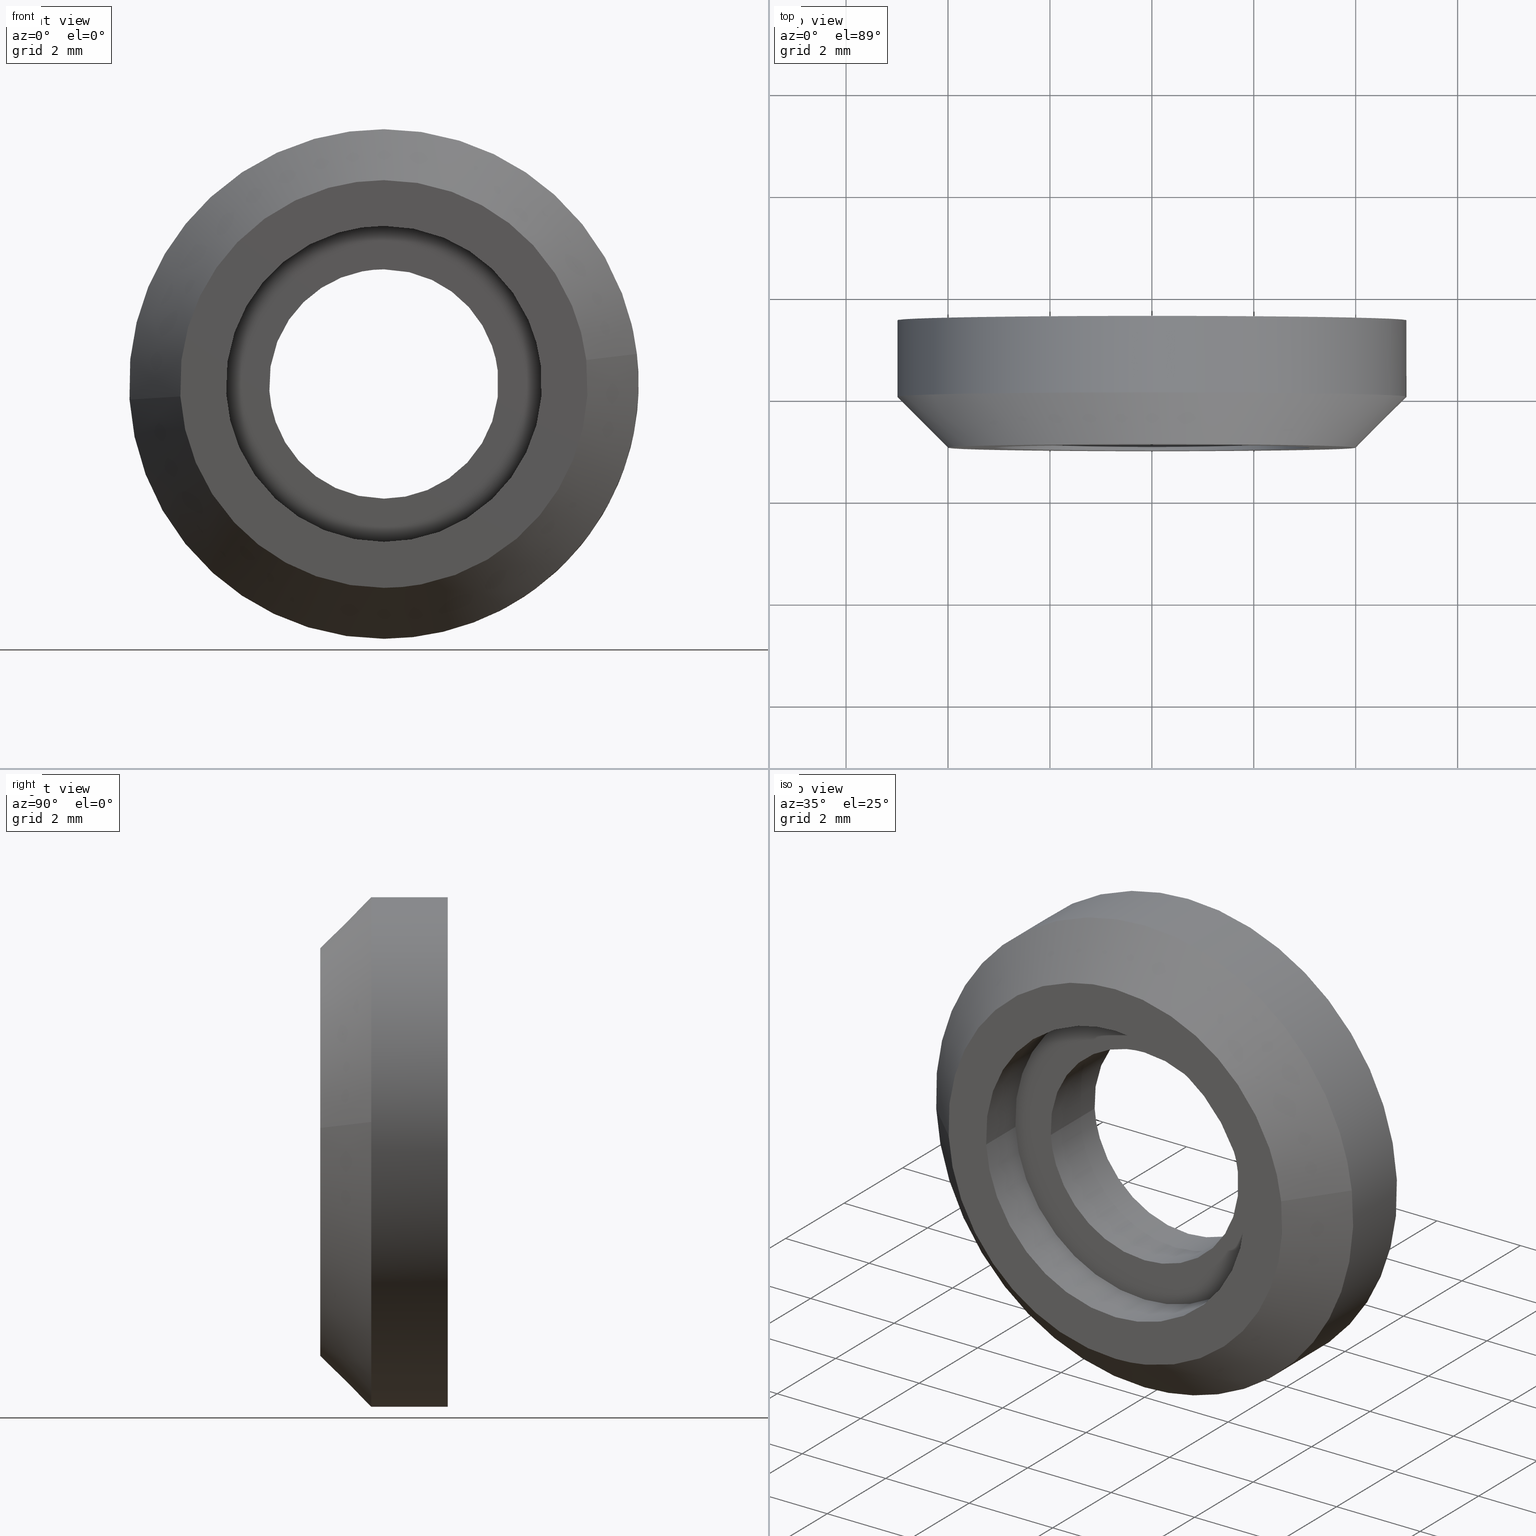
[diagram: canonical four-view strip — front | top / right | iso, engineering-drawing reading convention]
A machine part, canonical four-view strip (front | top / right | iso — engineering-drawing reading convention). The complete STEP part file that produces these views, byte-faithful:
ISO-10303-21;
HEADER;
/****************************************************************
 * Generated by software with PDE/Lib inside                    *
 * PDElib Version 4.4.1-0003, patched  Thursday August 19 11:58 *
 * International Technegroup Inc. (www.iti-oh.com)              *
 ****************************************************************/
FILE_DESCRIPTION((''),'2;1');
FILE_NAME('','2005-10-12T14:39:34',(''),(''),'','CADfix','');
FILE_SCHEMA(('AUTOMOTIVE_DESIGN'));
ENDSEC;
DATA;
#5=APPLICATION_CONTEXT('automotive design');
#6=APPLICATION_PROTOCOL_DEFINITION('Draft International Standard','automotive_design',1998,#5);
#7=PRODUCT_CONTEXT('None',#5,'mechanical');
#8=PRODUCT('facing ring','','None',(#7));
#9=PRODUCT_RELATED_PRODUCT_CATEGORY('part','description',(#8));
#10=PRODUCT_DEFINITION_FORMATION('None','None',#8);
#11=PRODUCT_DEFINITION_CONTEXT('part definition',#5,'design');
#12=PRODUCT_DEFINITION('None','None',#10,#11);
#18=(NAMED_UNIT(*)PLANE_ANGLE_UNIT()SI_UNIT($,.RADIAN.));
#19=DIMENSIONAL_EXPONENTS(0.0,0.0,0.0,0.0,0.0,0.0,0.0);
#20=PLANE_ANGLE_MEASURE_WITH_UNIT(PLANE_ANGLE_MEASURE(0.017453292500000),#18);
#24=(CONVERSION_BASED_UNIT('DEGREE',#20)NAMED_UNIT(#19)PLANE_ANGLE_UNIT());
#28=(NAMED_UNIT(*)SI_UNIT($,.STERADIAN.)SOLID_ANGLE_UNIT());
#32=(LENGTH_UNIT()NAMED_UNIT(*)SI_UNIT(.MILLI.,.METRE.));
#34=UNCERTAINTY_MEASURE_WITH_UNIT(LENGTH_MEASURE(0.001000000000000),#32,'DISTANCE_ACCURACY_VALUE','');
#36=(GEOMETRIC_REPRESENTATION_CONTEXT(3)GLOBAL_UNCERTAINTY_ASSIGNED_CONTEXT((#34))GLOBAL_UNIT_ASSIGNED_CONTEXT((#24,#28,#32))REPRESENTATION_CONTEXT('None','None'));
#37=AXIS2_PLACEMENT_3D('',#38,#39,#40);
#38=CARTESIAN_POINT('',(0.0,0.0,0.0));
#39=DIRECTION('',(0.0,0.0,1.0));
#40=DIRECTION('',(1.0,0.0,0.0));
#41=ADVANCED_BREP_SHAPE_REPRESENTATION('',(#37,#803),#36);
#42=PRODUCT_DEFINITION_SHAPE('','',#12);
#43=SHAPE_DEFINITION_REPRESENTATION(#42,#41);
#44=CARTESIAN_POINT('',(1.758089871957861,-0.037500000000000,-4.680717893883286));
#45=CARTESIAN_POINT('',(1.054947258577041,-0.037500000000000,-4.944820096825753));
#46=CARTESIAN_POINT('',(0.305242697674285,-0.037500000000000,-4.990673992109334));
#47=CARTESIAN_POINT('',(-4.685431294435048,-0.037500000000000,-5.295916689783620));
#48=CARTESIAN_POINT('',(-4.990673992109334,-0.037500000000000,-0.305242697674285));
#49=CARTESIAN_POINT('',(1.758089871957861,1.538437500000001,-4.680717893883286));
#50=CARTESIAN_POINT('',(1.054947258577041,1.538437500000000,-4.944820096825753));
#51=CARTESIAN_POINT('',(0.305242697674285,1.538437500000000,-4.990673992109334));
#52=CARTESIAN_POINT('',(-4.685431294435048,1.538437500000001,-5.295916689783620));
#53=CARTESIAN_POINT('',(-4.990673992109334,1.538437500000000,-0.305242697674285));
#61=(BOUNDED_SURFACE()B_SPLINE_SURFACE(2,1,((#44,#49),(#45,#50),(#46,#51),(#47,#52),(#48,#53)),.UNSPECIFIED.,.F.,.F.,.U.)B_SPLINE_SURFACE_WITH_KNOTS((3,2,3),(2,2),(0.0,1.656854249492380,9.941125496954278),(0.0,1.0),.UNSPECIFIED.)GEOMETRIC_REPRESENTATION_ITEM()RATIONAL_B_SPLINE_SURFACE(((0.906274169979695,0.906274169979695),(0.941421356237309,0.941421356237309),(1.0,1.0),(0.707106781186548,0.707106781186548),(1.0,1.0)))REPRESENTATION_ITEM('')SURFACE());
#62=CARTESIAN_POINT('',(1.758087682605363,1.053535E-014,-4.680718716208636));
#63=VERTEX_POINT('',#62);
#64=CARTESIAN_POINT('',(0.0,0.0,-5.0));
#65=VERTEX_POINT('',#64);
#66=CARTESIAN_POINT('',(1.758087682605364,1.053535E-014,-4.680718716208636));
#67=CARTESIAN_POINT('',(0.908035722421032,0.0,-5.000000000000001));
#68=CARTESIAN_POINT('',(0.0,0.0,-5.0));
#76=(BOUNDED_CURVE()B_SPLINE_CURVE(2,(#66,#67,#68),.UNSPECIFIED.,.F.,.U.)B_SPLINE_CURVE_WITH_KNOTS((3,3),(0.440284244778167,0.500000000000000),.UNSPECIFIED.)CURVE()GEOMETRIC_REPRESENTATION_ITEM()RATIONAL_B_SPLINE_CURVE((0.893499645046490,0.930038640956804,1.0))REPRESENTATION_ITEM(''));
#77=EDGE_CURVE('',#63,#65,#76,.T.);
#78=ORIENTED_EDGE('',*,*,#77,.T.);
#79=CARTESIAN_POINT('',(-4.990673992109418,2.867984E-013,-0.305242697675468));
#80=VERTEX_POINT('',#79);
#81=CARTESIAN_POINT('',(0.0,0.0,-5.0));
#82=CARTESIAN_POINT('',(-4.703530334524016,0.0,-5.0));
#83=CARTESIAN_POINT('',(-4.990673992109418,2.867984E-013,-0.305242697675468));
#91=(BOUNDED_CURVE()B_SPLINE_CURVE(2,(#81,#82,#83),.UNSPECIFIED.,.F.,.U.)B_SPLINE_CURVE_WITH_KNOTS((3,3),(0.500000000000000,0.739332962241805),.UNSPECIFIED.)CURVE()GEOMETRIC_REPRESENTATION_ITEM()RATIONAL_B_SPLINE_CURVE((1.0,0.719603993283357,0.976072041672852))REPRESENTATION_ITEM(''));
#92=EDGE_CURVE('',#65,#80,#91,.T.);
#93=ORIENTED_EDGE('',*,*,#92,.T.);
#94=CARTESIAN_POINT('',(-4.990674099992546,1.500000000000000,-0.305240933789139));
#95=VERTEX_POINT('',#94);
#96=CARTESIAN_POINT('',(-4.990673992109418,2.867984E-013,-0.305242697675468));
#97=CARTESIAN_POINT('',(-4.990674099992546,1.500000000000000,-0.305240933789139));
#98=QUASI_UNIFORM_CURVE('',1,(#96,#97),.UNSPECIFIED.,.F.,.U.);
#99=EDGE_CURVE('',#80,#95,#98,.T.);
#100=ORIENTED_EDGE('',*,*,#99,.T.);
#101=CARTESIAN_POINT('',(0.0,1.500000000000000,-5.0));
#102=VERTEX_POINT('',#101);
#103=CARTESIAN_POINT('',(0.0,1.500000000000000,-5.0));
#104=CARTESIAN_POINT('',(-4.703532000033385,1.500000000000000,-5.000000000000001));
#105=CARTESIAN_POINT('',(-4.990674099992546,1.500000000000000,-0.305240933789139));
#113=(BOUNDED_CURVE()B_SPLINE_CURVE(2,(#103,#104,#105),.UNSPECIFIED.,.F.,.U.)B_SPLINE_CURVE_WITH_KNOTS((3,3),(0.500000000000000,0.739333023226263),.UNSPECIFIED.)CURVE()GEOMETRIC_REPRESENTATION_ITEM()RATIONAL_B_SPLINE_CURVE((1.0,0.719603921835620,0.976072172374189))REPRESENTATION_ITEM(''));
#114=EDGE_CURVE('',#102,#95,#113,.T.);
#115=ORIENTED_EDGE('',*,*,#114,.F.);
#116=CARTESIAN_POINT('',(1.758088082475057,1.500000000000000,-4.680718566016922));
#117=VERTEX_POINT('',#116);
#118=CARTESIAN_POINT('',(1.758088082475058,1.500000000000000,-4.680718566016923));
#119=CARTESIAN_POINT('',(0.908035943037687,1.500000000000000,-5.0));
#120=CARTESIAN_POINT('',(0.0,1.500000000000000,-5.0));
#128=(BOUNDED_CURVE()B_SPLINE_CURVE(2,(#118,#119,#120),.UNSPECIFIED.,.F.,.U.)B_SPLINE_CURVE_WITH_KNOTS((3,3),(0.440284231284646,0.500000000000000),.UNSPECIFIED.)CURVE()GEOMETRIC_REPRESENTATION_ITEM()RATIONAL_B_SPLINE_CURVE((0.893499628533607,0.930038625148161,1.0))REPRESENTATION_ITEM(''));
#129=EDGE_CURVE('',#117,#102,#128,.T.);
#130=ORIENTED_EDGE('',*,*,#129,.F.);
#131=CARTESIAN_POINT('',(1.758087682605363,1.053535E-014,-4.680718716208636));
#132=CARTESIAN_POINT('',(1.758088082475057,1.500000000000000,-4.680718566016922));
#133=QUASI_UNIFORM_CURVE('',1,(#131,#132),.UNSPECIFIED.,.F.,.U.);
#134=EDGE_CURVE('',#63,#117,#133,.T.);
#135=ORIENTED_EDGE('',*,*,#134,.F.);
#136=EDGE_LOOP('',(#78,#93,#100,#115,#130,#135));
#137=FACE_OUTER_BOUND('',#136,.T.);
#138=ADVANCED_FACE('',(#137),#61,.T.);
#139=CARTESIAN_POINT('',(-4.990673992109334,-0.037500000000000,-0.305242697674285));
#140=CARTESIAN_POINT('',(-5.295916689783620,-0.037500000000000,4.685431294435048));
#141=CARTESIAN_POINT('',(-0.305242697674285,-0.037500000000000,4.990673992109334));
#142=CARTESIAN_POINT('',(4.685431294435048,-0.037500000000000,5.295916689783620));
#143=CARTESIAN_POINT('',(4.990673992109334,-0.037500000000000,0.305242697674285));
#144=CARTESIAN_POINT('',(5.216186114346709,-0.037500000000000,-3.381847909015326));
#145=CARTESIAN_POINT('',(1.758089871957861,-0.037500000000000,-4.680717893883286));
#146=CARTESIAN_POINT('',(-4.990673992109334,1.538437500000000,-0.305242697674285));
#147=CARTESIAN_POINT('',(-5.295916689783620,1.538437500000001,4.685431294435048));
#148=CARTESIAN_POINT('',(-0.305242697674285,1.538437500000000,4.990673992109334));
#149=CARTESIAN_POINT('',(4.685431294435048,1.538437500000001,5.295916689783620));
#150=CARTESIAN_POINT('',(4.990673992109334,1.538437500000000,0.305242697674285));
#151=CARTESIAN_POINT('',(5.216186114346709,1.538437500000001,-3.381847909015326));
#152=CARTESIAN_POINT('',(1.758089871957861,1.538437500000001,-4.680717893883286));
#160=(BOUNDED_SURFACE()B_SPLINE_SURFACE(2,1,((#139,#146),(#140,#147),(#141,#148),(#142,#149),(#143,#150),(#144,#151),(#145,#152)),.UNSPECIFIED.,.F.,.F.,.U.)B_SPLINE_SURFACE_WITH_KNOTS((3,2,2,3),(2,2),(0.0,8.284271247461899,16.568542494923800,23.195959492893319),(0.0,1.0),.UNSPECIFIED.)GEOMETRIC_REPRESENTATION_ITEM()RATIONAL_B_SPLINE_SURFACE(((1.0,1.0),(0.707106781186548,0.707106781186548),(1.0,1.0),(0.707106781186548,0.707106781186548),(1.0,1.0),(0.765685424949238,0.765685424949238),(0.906274169979695,0.906274169979695)))REPRESENTATION_ITEM('')SURFACE());
#161=CARTESIAN_POINT('',(4.965047631818395,9.866747E-013,0.590171173291608));
#162=VERTEX_POINT('',#161);
#163=CARTESIAN_POINT('',(4.965047631818395,9.866747E-013,0.590171173291608));
#164=CARTESIAN_POINT('',(5.0,0.0,0.296120598267331));
#165=CARTESIAN_POINT('',(5.0,0.0,0.0));
#166=CARTESIAN_POINT('',(5.0,0.0,-3.463049708763557));
#167=CARTESIAN_POINT('',(1.758087682605364,1.053535E-014,-4.680718716208636));
#175=(BOUNDED_CURVE()B_SPLINE_CURVE(2,(#163,#164,#165,#166,#167),.UNSPECIFIED.,.F.,.U.)B_SPLINE_CURVE_WITH_KNOTS((3,2,3),(0.229562473515120,0.250000000000000,0.440284244778167),.UNSPECIFIED.)CURVE()GEOMETRIC_REPRESENTATION_ITEM()RATIONAL_B_SPLINE_CURVE((0.956026754186858,0.976055948333033,1.0,0.777068140229744,0.893499645046490))REPRESENTATION_ITEM(''));
#176=EDGE_CURVE('',#162,#63,#175,.T.);
#177=ORIENTED_EDGE('',*,*,#176,.T.);
#178=ORIENTED_EDGE('',*,*,#134,.T.);
#179=CARTESIAN_POINT('',(0.0,1.500000000000000,5.0));
#180=VERTEX_POINT('',#179);
#181=CARTESIAN_POINT('',(0.0,1.500000000000000,5.0));
#182=CARTESIAN_POINT('',(5.000000000000001,1.500000000000000,5.000000000000001));
#183=CARTESIAN_POINT('',(5.0,1.500000000000000,0.0));
#184=CARTESIAN_POINT('',(5.0,1.500000000000000,-3.463049392738106));
#185=CARTESIAN_POINT('',(1.758088082475058,1.500000000000000,-4.680718566016923));
#193=(BOUNDED_CURVE()B_SPLINE_CURVE(2,(#181,#182,#183,#184,#185),.UNSPECIFIED.,.F.,.U.)B_SPLINE_CURVE_WITH_KNOTS((3,2,3),(0.0,0.250000000000000,0.440284231284646),.UNSPECIFIED.)CURVE()GEOMETRIC_REPRESENTATION_ITEM()RATIONAL_B_SPLINE_CURVE((1.0,0.707106781186548,1.0,0.777068156038386,0.893499628533607))REPRESENTATION_ITEM(''));
#194=EDGE_CURVE('',#180,#117,#193,.T.);
#195=ORIENTED_EDGE('',*,*,#194,.F.);
#196=CARTESIAN_POINT('',(-4.990674099992546,1.500000000000000,-0.305240933789139));
#197=CARTESIAN_POINT('',(-4.999999999999999,1.500000000000000,-0.152762932077514));
#198=CARTESIAN_POINT('',(-5.0,1.500000000000000,0.0));
#199=CARTESIAN_POINT('',(-5.000000000000001,1.500000000000000,5.000000000000001));
#200=CARTESIAN_POINT('',(0.0,1.500000000000000,5.0));
#208=(BOUNDED_CURVE()B_SPLINE_CURVE(2,(#196,#197,#198,#199,#200),.UNSPECIFIED.,.F.,.U.)B_SPLINE_CURVE_WITH_KNOTS((3,2,3),(0.739333023226263,0.750000000000000,1.0),.UNSPECIFIED.)CURVE()GEOMETRIC_REPRESENTATION_ITEM()RATIONAL_B_SPLINE_CURVE((0.976072172374189,0.987502859350927,1.0,0.707106781186548,1.0))REPRESENTATION_ITEM(''));
#209=EDGE_CURVE('',#95,#180,#208,.T.);
#210=ORIENTED_EDGE('',*,*,#209,.F.);
#211=ORIENTED_EDGE('',*,*,#99,.F.);
#212=CARTESIAN_POINT('',(0.0,0.0,5.0));
#213=VERTEX_POINT('',#212);
#214=CARTESIAN_POINT('',(-4.990673992109418,2.867984E-013,-0.305242697675468));
#215=CARTESIAN_POINT('',(-5.0,0.0,-0.152763816495298));
#216=CARTESIAN_POINT('',(-5.0,0.0,0.0));
#217=CARTESIAN_POINT('',(-5.000000000000001,0.0,5.000000000000001));
#218=CARTESIAN_POINT('',(0.0,0.0,5.0));
#226=(BOUNDED_CURVE()B_SPLINE_CURVE(2,(#214,#215,#216,#217,#218),.UNSPECIFIED.,.F.,.U.)B_SPLINE_CURVE_WITH_KNOTS((3,2,3),(0.739332962241806,0.750000000000000,1.0),.UNSPECIFIED.)CURVE()GEOMETRIC_REPRESENTATION_ITEM()RATIONAL_B_SPLINE_CURVE((0.976072041672854,0.987502787903192,1.0,0.707106781186548,1.0))REPRESENTATION_ITEM(''));
#227=EDGE_CURVE('',#80,#213,#226,.T.);
#228=ORIENTED_EDGE('',*,*,#227,.T.);
#229=CARTESIAN_POINT('',(0.0,0.0,5.0));
#230=CARTESIAN_POINT('',(4.440872629742970,0.0,4.999999999999999));
#231=CARTESIAN_POINT('',(4.965047631818397,9.866747E-013,0.590171173291608));
#239=(BOUNDED_CURVE()B_SPLINE_CURVE(2,(#229,#230,#231),.UNSPECIFIED.,.F.,.U.)B_SPLINE_CURVE_WITH_KNOTS((3,3),(0.0,0.229562473515120),.UNSPECIFIED.)CURVE()GEOMETRIC_REPRESENTATION_ITEM()RATIONAL_B_SPLINE_CURVE((1.0,0.731050832853514,0.956026754186859))REPRESENTATION_ITEM(''));
#240=EDGE_CURVE('',#213,#162,#239,.T.);
#241=ORIENTED_EDGE('',*,*,#240,.T.);
#242=EDGE_LOOP('',(#177,#178,#195,#210,#211,#228,#241));
#243=FACE_OUTER_BOUND('',#242,.T.);
#244=ADVANCED_FACE('',(#243),#160,.T.);
#245=CARTESIAN_POINT('',(2.230330543402312,-0.037500000000000,0.298731326247749));
#246=CARTESIAN_POINT('',(2.232306544374755,-0.037500000000000,0.282107439157308));
#247=CARTESIAN_POINT('',(2.241872134759362,-0.037500000000000,0.201633139435450));
#248=CARTESIAN_POINT('',(2.245803296449200,-0.037500000000000,0.137359213953428));
#249=CARTESIAN_POINT('',(2.383162510402629,-0.037500000000000,-2.108444082495772));
#250=CARTESIAN_POINT('',(0.137359213953428,-0.037500000000000,-2.245803296449200));
#251=CARTESIAN_POINT('',(-2.108444082495772,-0.037500000000000,-2.383162510402629));
#252=CARTESIAN_POINT('',(-2.246791158978780,-0.037500000000000,-0.121207804364544));
#253=CARTESIAN_POINT('',(-2.247773153405460,-0.037500000000000,-0.105152337410000));
#254=CARTESIAN_POINT('',(2.230330543402312,1.538437500000001,0.298731326247749));
#255=CARTESIAN_POINT('',(2.232306544374755,1.538437500000000,0.282107439157308));
#256=CARTESIAN_POINT('',(2.241872134759362,1.538437500000001,0.201633139435450));
#257=CARTESIAN_POINT('',(2.245803296449200,1.538437500000000,0.137359213953428));
#258=CARTESIAN_POINT('',(2.383162510402629,1.538437500000001,-2.108444082495772));
#259=CARTESIAN_POINT('',(0.137359213953428,1.538437500000000,-2.245803296449200));
#260=CARTESIAN_POINT('',(-2.108444082495772,1.538437500000001,-2.383162510402629));
#261=CARTESIAN_POINT('',(-2.246791158978780,1.538437500000000,-0.121207804364544));
#262=CARTESIAN_POINT('',(-2.247773153405460,1.538437500000001,-0.105152337410000));
#270=(BOUNDED_SURFACE()B_SPLINE_SURFACE(2,1,((#245,#254),(#246,#255),(#247,#256),(#248,#257),(#249,#258),(#250,#259),(#251,#260),(#252,#261),(#253,#262)),.UNSPECIFIED.,.F.,.F.,.U.)B_SPLINE_SURFACE_WITH_KNOTS((3,1,2,2,1,3),(2,2),(0.0,0.038021229159559,0.187138111613873,3.915060172971728,7.642982234329582,7.681011348515430),(0.0,1.0),.UNSPECIFIED.)GEOMETRIC_REPRESENTATION_ITEM()RATIONAL_B_SPLINE_SURFACE(((0.972009297806160,0.972009297806160),(0.974757549300643,0.974757549300643),(0.988284271247462,0.988284271247462),(1.0,1.0),(0.707106781186548,0.707106781186548),(1.0,1.0),(0.707106781186548,0.707106781186548),(1.002987849391481,1.002987849391481),(1.005975698782962,1.005975698782962)))REPRESENTATION_ITEM('')SURFACE());
#271=CARTESIAN_POINT('',(2.234271807760320,1.499999999999976,0.265573886211392));
#272=VERTEX_POINT('',#271);
#273=CARTESIAN_POINT('',(0.0,1.500000000000000,-2.250000000000000));
#274=VERTEX_POINT('',#273);
#275=CARTESIAN_POINT('',(2.234271807760319,1.499999999999977,0.265573886211392));
#276=CARTESIAN_POINT('',(2.250000000000000,1.500000000000000,0.133252681726796));
#277=CARTESIAN_POINT('',(2.250000000000000,1.500000000000000,0.0));
#278=CARTESIAN_POINT('',(2.250000000000000,1.500000000000000,-2.250000000000000));
#279=CARTESIAN_POINT('',(0.0,1.500000000000000,-2.250000000000000));
#287=(BOUNDED_CURVE()B_SPLINE_CURVE(2,(#275,#276,#277,#278,#279),.UNSPECIFIED.,.F.,.U.)B_SPLINE_CURVE_WITH_KNOTS((3,2,3),(0.229562711163027,0.250000000000000,0.500000000000000),.UNSPECIFIED.)CURVE()GEOMETRIC_REPRESENTATION_ITEM()RATIONAL_B_SPLINE_CURVE((0.956027219987011,0.976056226754875,1.0,0.707106781186547,1.0))REPRESENTATION_ITEM(''));
#288=EDGE_CURVE('',#272,#274,#287,.T.);
#289=ORIENTED_EDGE('',*,*,#288,.T.);
#290=CARTESIAN_POINT('',(-2.245803520840400,1.499999999999997,-0.137355545091388));
#291=VERTEX_POINT('',#290);
#292=CARTESIAN_POINT('',(0.0,1.500000000000000,-2.250000000000000));
#293=CARTESIAN_POINT('',(-2.116592114771839,1.500000000000000,-2.250000000000001));
#294=CARTESIAN_POINT('',(-2.245803520840400,1.499999999999997,-0.137355545091388));
#302=(BOUNDED_CURVE()B_SPLINE_CURVE(2,(#292,#293,#294),.UNSPECIFIED.,.F.,.U.)B_SPLINE_CURVE_WITH_KNOTS((3,3),(0.500000000000000,0.739333244123512),.UNSPECIFIED.)CURVE()GEOMETRIC_REPRESENTATION_ITEM()RATIONAL_B_SPLINE_CURVE((1.0,0.719603663038395,0.976072645799753))REPRESENTATION_ITEM(''));
#303=EDGE_CURVE('',#274,#291,#302,.T.);
#304=ORIENTED_EDGE('',*,*,#303,.T.);
#305=CARTESIAN_POINT('',(-2.245803518071988,3.469447E-017,-0.137355590356938));
#306=VERTEX_POINT('',#305);
#307=CARTESIAN_POINT('',(-2.245803518071988,3.469447E-017,-0.137355590356938));
#308=CARTESIAN_POINT('',(-2.245803520840400,1.499999999999997,-0.137355545091388));
#309=QUASI_UNIFORM_CURVE('',1,(#307,#308),.UNSPECIFIED.,.F.,.U.);
#310=EDGE_CURVE('',#306,#291,#309,.T.);
#311=ORIENTED_EDGE('',*,*,#310,.F.);
#312=CARTESIAN_POINT('',(0.0,0.0,-2.250000000000000));
#313=VERTEX_POINT('',#312);
#314=CARTESIAN_POINT('',(0.0,0.0,-2.250000000000000));
#315=CARTESIAN_POINT('',(-2.116592072030913,0.0,-2.250000000000000));
#316=CARTESIAN_POINT('',(-2.245803518071988,3.469447E-017,-0.137355590356937));
#324=(BOUNDED_CURVE()B_SPLINE_CURVE(2,(#314,#315,#316),.UNSPECIFIED.,.F.,.U.)B_SPLINE_CURVE_WITH_KNOTS((3,3),(0.500000000000000,0.739333240645724),.UNSPECIFIED.)CURVE()GEOMETRIC_REPRESENTATION_ITEM()RATIONAL_B_SPLINE_CURVE((1.0,0.719603667112877,0.976072638346172))REPRESENTATION_ITEM(''));
#325=EDGE_CURVE('',#313,#306,#324,.T.);
#326=ORIENTED_EDGE('',*,*,#325,.F.);
#327=CARTESIAN_POINT('',(2.234271803154819,3.194357E-017,0.265573924957907));
#328=VERTEX_POINT('',#327);
#329=CARTESIAN_POINT('',(2.234271803154818,3.194357E-017,0.265573924957907));
#330=CARTESIAN_POINT('',(2.250000000000000,0.0,0.133252701304857));
#331=CARTESIAN_POINT('',(2.250000000000000,0.0,0.0));
#332=CARTESIAN_POINT('',(2.250000000000000,0.0,-2.250000000000000));
#333=CARTESIAN_POINT('',(0.0,0.0,-2.250000000000000));
#341=(BOUNDED_CURVE()B_SPLINE_CURVE(2,(#329,#330,#331,#332,#333),.UNSPECIFIED.,.F.,.U.)B_SPLINE_CURVE_WITH_KNOTS((3,2,3),(0.229562708232189,0.250000000000000,0.500000000000000),.UNSPECIFIED.)CURVE()GEOMETRIC_REPRESENTATION_ITEM()RATIONAL_B_SPLINE_CURVE((0.956027214242435,0.976056223321185,1.0,0.707106781186547,1.0))REPRESENTATION_ITEM(''));
#342=EDGE_CURVE('',#328,#313,#341,.T.);
#343=ORIENTED_EDGE('',*,*,#342,.F.);
#344=CARTESIAN_POINT('',(2.234271803154819,3.194357E-017,0.265573924957907));
#345=CARTESIAN_POINT('',(2.234271807760320,1.499999999999976,0.265573886211392));
#346=QUASI_UNIFORM_CURVE('',1,(#344,#345),.UNSPECIFIED.,.F.,.U.);
#347=EDGE_CURVE('',#328,#272,#346,.T.);
#348=ORIENTED_EDGE('',*,*,#347,.T.);
#349=EDGE_LOOP('',(#289,#304,#311,#326,#343,#348));
#350=FACE_OUTER_BOUND('',#349,.T.);
#351=ADVANCED_FACE('',(#350),#270,.F.);
#352=CARTESIAN_POINT('',(-2.245803296449200,-0.037500000000000,-0.137359213953428));
#353=CARTESIAN_POINT('',(-2.383162510402629,-0.037500000000000,2.108444082495772));
#354=CARTESIAN_POINT('',(-0.137359213953428,-0.037500000000000,2.245803296449200));
#355=CARTESIAN_POINT('',(1.983472854388877,-0.037500000000000,2.375518942648186));
#356=CARTESIAN_POINT('',(2.234271434318250,-0.037500000000000,0.265577027977707));
#357=CARTESIAN_POINT('',(-2.245803296449200,1.538437500000000,-0.137359213953428));
#358=CARTESIAN_POINT('',(-2.383162510402629,1.538437500000001,2.108444082495772));
#359=CARTESIAN_POINT('',(-0.137359213953428,1.538437500000000,2.245803296449200));
#360=CARTESIAN_POINT('',(1.983472854388877,1.538437500000000,2.375518942648186));
#361=CARTESIAN_POINT('',(2.234271434318250,1.538437500000000,0.265577027977707));
#369=(BOUNDED_SURFACE()B_SPLINE_SURFACE(2,1,((#352,#357),(#353,#358),(#354,#359),(#355,#360),(#356,#361)),.UNSPECIFIED.,.F.,.F.,.U.)B_SPLINE_SURFACE_WITH_KNOTS((3,2,3),(2,2),(0.0,3.727922061357854,7.306727240261394),(0.0,1.0),.UNSPECIFIED.)GEOMETRIC_REPRESENTATION_ITEM()RATIONAL_B_SPLINE_SURFACE(((1.0,1.0),(0.707106781186548,0.707106781186548),(1.0,1.0),(0.718822509939086,0.718822509939086),(0.977505800795127,0.977505800795127)))REPRESENTATION_ITEM('')SURFACE());
#370=CARTESIAN_POINT('',(0.0,1.500000000000000,2.250000000000000));
#371=VERTEX_POINT('',#370);
#372=CARTESIAN_POINT('',(0.0,1.500000000000000,2.250000000000000));
#373=CARTESIAN_POINT('',(1.998395513254554,1.500000000000001,2.250000000000000));
#374=CARTESIAN_POINT('',(2.234271807760319,1.499999999999977,0.265573886211392));
#382=(BOUNDED_CURVE()B_SPLINE_CURVE(2,(#372,#373,#374),.UNSPECIFIED.,.F.,.U.)B_SPLINE_CURVE_WITH_KNOTS((3,3),(0.0,0.229562711163027),.UNSPECIFIED.)CURVE()GEOMETRIC_REPRESENTATION_ITEM()RATIONAL_B_SPLINE_CURVE((1.0,0.731050554431672,0.956027219987011))REPRESENTATION_ITEM(''));
#383=EDGE_CURVE('',#371,#272,#382,.T.);
#384=ORIENTED_EDGE('',*,*,#383,.T.);
#385=ORIENTED_EDGE('',*,*,#347,.F.);
#386=CARTESIAN_POINT('',(0.0,0.0,2.250000000000000));
#387=VERTEX_POINT('',#386);
#388=CARTESIAN_POINT('',(0.0,0.0,2.250000000000000));
#389=CARTESIAN_POINT('',(1.998395478354626,0.0,2.250000000000001));
#390=CARTESIAN_POINT('',(2.234271803154818,3.194357E-017,0.265573924957907));
#398=(BOUNDED_CURVE()B_SPLINE_CURVE(2,(#388,#389,#390),.UNSPECIFIED.,.F.,.U.)B_SPLINE_CURVE_WITH_KNOTS((3,3),(0.0,0.229562708232189),.UNSPECIFIED.)CURVE()GEOMETRIC_REPRESENTATION_ITEM()RATIONAL_B_SPLINE_CURVE((1.0,0.731050557865363,0.956027214242435))REPRESENTATION_ITEM(''));
#399=EDGE_CURVE('',#387,#328,#398,.T.);
#400=ORIENTED_EDGE('',*,*,#399,.F.);
#401=CARTESIAN_POINT('',(-2.245803518071988,3.469447E-017,-0.137355590356937));
#402=CARTESIAN_POINT('',(-2.250000000000000,0.0,-0.068741900543697));
#403=CARTESIAN_POINT('',(-2.250000000000000,0.0,0.0));
#404=CARTESIAN_POINT('',(-2.250000000000000,0.0,2.250000000000000));
#405=CARTESIAN_POINT('',(0.0,0.0,2.250000000000000));
#413=(BOUNDED_CURVE()B_SPLINE_CURVE(2,(#401,#402,#403,#404,#405),.UNSPECIFIED.,.F.,.U.)B_SPLINE_CURVE_WITH_KNOTS((3,2,3),(0.739333240645724,0.750000000000000,1.0),.UNSPECIFIED.)CURVE()GEOMETRIC_REPRESENTATION_ITEM()RATIONAL_B_SPLINE_CURVE((0.976072638346172,0.987503114073670,1.0,0.707106781186547,1.0))REPRESENTATION_ITEM(''));
#414=EDGE_CURVE('',#306,#387,#413,.T.);
#415=ORIENTED_EDGE('',*,*,#414,.F.);
#416=ORIENTED_EDGE('',*,*,#310,.T.);
#417=CARTESIAN_POINT('',(-2.245803520840400,1.499999999999997,-0.137355545091388));
#418=CARTESIAN_POINT('',(-2.250000000000000,1.500000000000000,-0.068741877847468));
#419=CARTESIAN_POINT('',(-2.250000000000000,1.500000000000000,0.0));
#420=CARTESIAN_POINT('',(-2.250000000000000,1.500000000000000,2.250000000000000));
#421=CARTESIAN_POINT('',(0.0,1.500000000000000,2.250000000000000));
#429=(BOUNDED_CURVE()B_SPLINE_CURVE(2,(#417,#418,#419,#420,#421),.UNSPECIFIED.,.F.,.U.)B_SPLINE_CURVE_WITH_KNOTS((3,2,3),(0.739333244123512,0.750000000000000,1.0),.UNSPECIFIED.)CURVE()GEOMETRIC_REPRESENTATION_ITEM()RATIONAL_B_SPLINE_CURVE((0.976072645799753,0.987503118148153,1.0,0.707106781186547,1.0))REPRESENTATION_ITEM(''));
#430=EDGE_CURVE('',#291,#371,#429,.T.);
#431=ORIENTED_EDGE('',*,*,#430,.T.);
#432=EDGE_LOOP('',(#384,#385,#400,#415,#416,#431));
#433=FACE_OUTER_BOUND('',#432,.T.);
#434=ADVANCED_FACE('',(#433),#369,.F.);
#435=CARTESIAN_POINT('',(3.078329531727365,-1.025000000000000,0.365906127435951));
#436=CARTESIAN_POINT('',(3.088801607890678,-1.025000000000000,0.277805658777731));
#437=CARTESIAN_POINT('',(3.094217875107787,-1.025000000000000,0.189250472558057));
#438=CARTESIAN_POINT('',(3.283468347665843,-1.025000000000000,-2.904967402549729));
#439=CARTESIAN_POINT('',(0.189250472558057,-1.025000000000000,-3.094217875107787));
#440=CARTESIAN_POINT('',(-2.904967402549729,-1.025000000000000,-3.283468347665843));
#441=CARTESIAN_POINT('',(-3.094217875107787,-1.025000000000000,-0.189250472558057));
#442=CARTESIAN_POINT('',(3.078329531727365,0.025625000000000,0.365906127435951));
#443=CARTESIAN_POINT('',(3.088801607890678,0.025625000000000,0.277805658777731));
#444=CARTESIAN_POINT('',(3.094217875107787,0.025625000000000,0.189250472558057));
#445=CARTESIAN_POINT('',(3.283468347665843,0.025625000000000,-2.904967402549729));
#446=CARTESIAN_POINT('',(0.189250472558057,0.025625000000000,-3.094217875107787));
#447=CARTESIAN_POINT('',(-2.904967402549729,0.025625000000000,-3.283468347665843));
#448=CARTESIAN_POINT('',(-3.094217875107787,0.025625000000000,-0.189250472558057));
#456=(BOUNDED_SURFACE()B_SPLINE_SURFACE(2,1,((#435,#442),(#436,#443),(#437,#444),(#438,#445),(#439,#446),(#440,#447),(#441,#448)),.UNSPECIFIED.,.F.,.F.,.U.)B_SPLINE_SURFACE_WITH_KNOTS((3,2,2,3),(2,2),(0.0,0.205449926937055,5.341698100363432,10.477946273789810),(0.0,1.0),.UNSPECIFIED.)GEOMETRIC_REPRESENTATION_ITEM()RATIONAL_B_SPLINE_SURFACE(((0.977505800795127,0.977505800795127),(0.988284271247462,0.988284271247462),(1.0,1.0),(0.707106781186548,0.707106781186548),(1.0,1.0),(0.707106781186548,0.707106781186548),(1.0,1.0)))REPRESENTATION_ITEM('')SURFACE());
#457=CARTESIAN_POINT('',(3.078329725640056,1.929746E-014,0.365904496061632));
#458=VERTEX_POINT('',#457);
#459=CARTESIAN_POINT('',(0.0,0.0,-3.100000000000000));
#460=VERTEX_POINT('',#459);
#461=CARTESIAN_POINT('',(3.078329725640056,1.929746E-014,0.365904496061632));
#462=CARTESIAN_POINT('',(3.100000000000001,0.0,0.183593946610486));
#463=CARTESIAN_POINT('',(3.100000000000000,0.0,0.0));
#464=CARTESIAN_POINT('',(3.100000000000000,0.0,-3.100000000000000));
#465=CARTESIAN_POINT('',(0.0,0.0,-3.100000000000000));
#473=(BOUNDED_CURVE()B_SPLINE_CURVE(2,(#461,#462,#463,#464,#465),.UNSPECIFIED.,.F.,.U.)B_SPLINE_CURVE_WITH_KNOTS((3,2,3),(0.229562563079665,0.250000000000000,0.500000000000000),.UNSPECIFIED.)CURVE()GEOMETRIC_REPRESENTATION_ITEM()RATIONAL_B_SPLINE_CURVE((0.956026929737107,0.976056053264425,1.0,0.707106781186547,1.0))REPRESENTATION_ITEM(''));
#474=EDGE_CURVE('',#458,#460,#473,.T.);
#475=ORIENTED_EDGE('',*,*,#474,.T.);
#476=CARTESIAN_POINT('',(-3.094218017339230,2.874610E-014,-0.189248147065834));
#477=VERTEX_POINT('',#476);
#478=CARTESIAN_POINT('',(0.0,0.0,-3.100000000000000));
#479=CARTESIAN_POINT('',(-2.916191003196507,0.0,-3.100000000000000));
#480=CARTESIAN_POINT('',(-3.094218017339231,2.874610E-014,-0.189248147065834));
#488=(BOUNDED_CURVE()B_SPLINE_CURVE(2,(#478,#479,#480),.UNSPECIFIED.,.F.,.U.)B_SPLINE_CURVE_WITH_KNOTS((3,3),(0.500000000000000,0.739333091921349),.UNSPECIFIED.)CURVE()GEOMETRIC_REPRESENTATION_ITEM()RATIONAL_B_SPLINE_CURVE((1.0,0.719603841354321,0.976072319600957))REPRESENTATION_ITEM(''));
#489=EDGE_CURVE('',#460,#477,#488,.T.);
#490=ORIENTED_EDGE('',*,*,#489,.T.);
#491=CARTESIAN_POINT('',(-3.094218015582970,-1.0,-0.189248175781133));
#492=VERTEX_POINT('',#491);
#493=CARTESIAN_POINT('',(-3.094218015582970,-1.0,-0.189248175781133));
#494=CARTESIAN_POINT('',(-3.094218017339230,2.874610E-014,-0.189248147065834));
#495=QUASI_UNIFORM_CURVE('',1,(#493,#494),.UNSPECIFIED.,.F.,.U.);
#496=EDGE_CURVE('',#492,#477,#495,.T.);
#497=ORIENTED_EDGE('',*,*,#496,.F.);
#498=CARTESIAN_POINT('',(0.0,-1.0,-3.100000000000000));
#499=VERTEX_POINT('',#498);
#500=CARTESIAN_POINT('',(0.0,-1.0,-3.100000000000000));
#501=CARTESIAN_POINT('',(-2.916190976082786,-1.0,-3.100000000000001));
#502=CARTESIAN_POINT('',(-3.094218015582970,-1.0,-0.189248175781133));
#510=(BOUNDED_CURVE()B_SPLINE_CURVE(2,(#500,#501,#502),.UNSPECIFIED.,.F.,.U.)B_SPLINE_CURVE_WITH_KNOTS((3,3),(0.500000000000000,0.739333090320061),.UNSPECIFIED.)CURVE()GEOMETRIC_REPRESENTATION_ITEM()RATIONAL_B_SPLINE_CURVE((1.0,0.719603843230347,0.976072316169088))REPRESENTATION_ITEM(''));
#511=EDGE_CURVE('',#499,#492,#510,.T.);
#512=ORIENTED_EDGE('',*,*,#511,.F.);
#513=CARTESIAN_POINT('',(3.078329723245384,-1.0,0.365904516207934));
#514=VERTEX_POINT('',#513);
#515=CARTESIAN_POINT('',(3.078329723245385,-1.0,0.365904516207934));
#516=CARTESIAN_POINT('',(3.100000000000000,-1.0,0.183593956790128));
#517=CARTESIAN_POINT('',(3.100000000000000,-1.0,0.0));
#518=CARTESIAN_POINT('',(3.100000000000000,-1.0,-3.100000000000000));
#519=CARTESIAN_POINT('',(0.0,-1.0,-3.100000000000000));
#527=(BOUNDED_CURVE()B_SPLINE_CURVE(2,(#515,#516,#517,#518,#519),.UNSPECIFIED.,.F.,.U.)B_SPLINE_CURVE_WITH_KNOTS((3,2,3),(0.229562561973614,0.250000000000000,0.500000000000000),.UNSPECIFIED.)CURVE()GEOMETRIC_REPRESENTATION_ITEM()RATIONAL_B_SPLINE_CURVE((0.956026927569199,0.976056051968605,1.0,0.707106781186547,1.0))REPRESENTATION_ITEM(''));
#528=EDGE_CURVE('',#514,#499,#527,.T.);
#529=ORIENTED_EDGE('',*,*,#528,.F.);
#530=CARTESIAN_POINT('',(3.078329723245384,-1.0,0.365904516207934));
#531=CARTESIAN_POINT('',(3.078329725640056,1.929746E-014,0.365904496061632));
#532=QUASI_UNIFORM_CURVE('',1,(#530,#531),.UNSPECIFIED.,.F.,.U.);
#533=EDGE_CURVE('',#514,#458,#532,.T.);
#534=ORIENTED_EDGE('',*,*,#533,.T.);
#535=EDGE_LOOP('',(#475,#490,#497,#512,#529,#534));
#536=FACE_OUTER_BOUND('',#535,.T.);
#537=ADVANCED_FACE('',(#536),#456,.F.);
#538=CARTESIAN_POINT('',(-3.094217875107787,-1.025000000000000,-0.189250472558057));
#539=CARTESIAN_POINT('',(-3.283468347665843,-1.025000000000000,2.904967402549729));
#540=CARTESIAN_POINT('',(-0.189250472558057,-1.025000000000000,3.094217875107787));
#541=CARTESIAN_POINT('',(2.732784821602453,-1.025000000000000,3.272937209870835));
#542=CARTESIAN_POINT('',(3.078329531727365,-1.025000000000000,0.365906127435951));
#543=CARTESIAN_POINT('',(-3.094217875107787,0.025625000000000,-0.189250472558057));
#544=CARTESIAN_POINT('',(-3.283468347665843,0.025625000000000,2.904967402549729));
#545=CARTESIAN_POINT('',(-0.189250472558057,0.025625000000000,3.094217875107787));
#546=CARTESIAN_POINT('',(2.732784821602453,0.025625000000000,3.272937209870835));
#547=CARTESIAN_POINT('',(3.078329531727365,0.025625000000000,0.365906127435951));
#555=(BOUNDED_SURFACE()B_SPLINE_SURFACE(2,1,((#538,#543),(#539,#544),(#540,#545),(#541,#546),(#542,#547)),.UNSPECIFIED.,.F.,.F.,.U.)B_SPLINE_SURFACE_WITH_KNOTS((3,2,3),(2,2),(0.0,5.136248173426377,10.067046419915700),(0.0,1.0),.UNSPECIFIED.)GEOMETRIC_REPRESENTATION_ITEM()RATIONAL_B_SPLINE_SURFACE(((1.0,1.0),(0.707106781186548,0.707106781186548),(1.0,1.0),(0.718822509939086,0.718822509939086),(0.977505800795127,0.977505800795127)))REPRESENTATION_ITEM('')SURFACE());
#556=CARTESIAN_POINT('',(0.0,0.0,3.100000000000000));
#557=VERTEX_POINT('',#556);
#558=CARTESIAN_POINT('',(0.0,0.0,3.100000000000000));
#559=CARTESIAN_POINT('',(2.753342499866643,0.0,3.100000000000000));
#560=CARTESIAN_POINT('',(3.078329725640056,1.929746E-014,0.365904496061632));
#568=(BOUNDED_CURVE()B_SPLINE_CURVE(2,(#558,#559,#560),.UNSPECIFIED.,.F.,.U.)B_SPLINE_CURVE_WITH_KNOTS((3,3),(0.0,0.229562563079665),.UNSPECIFIED.)CURVE()GEOMETRIC_REPRESENTATION_ITEM()RATIONAL_B_SPLINE_CURVE((1.0,0.731050727922123,0.956026929737107))REPRESENTATION_ITEM(''));
#569=EDGE_CURVE('',#557,#458,#568,.T.);
#570=ORIENTED_EDGE('',*,*,#569,.T.);
#571=ORIENTED_EDGE('',*,*,#533,.F.);
#572=CARTESIAN_POINT('',(0.0,-1.0,3.100000000000000));
#573=VERTEX_POINT('',#572);
#574=CARTESIAN_POINT('',(0.0,-1.0,3.100000000000000));
#575=CARTESIAN_POINT('',(2.753342481720389,-1.0,3.100000000000000));
#576=CARTESIAN_POINT('',(3.078329723245385,-1.0,0.365904516207934));
#584=(BOUNDED_CURVE()B_SPLINE_CURVE(2,(#574,#575,#576),.UNSPECIFIED.,.F.,.U.)B_SPLINE_CURVE_WITH_KNOTS((3,3),(0.0,0.229562561973614),.UNSPECIFIED.)CURVE()GEOMETRIC_REPRESENTATION_ITEM()RATIONAL_B_SPLINE_CURVE((1.0,0.731050729217943,0.956026927569199))REPRESENTATION_ITEM(''));
#585=EDGE_CURVE('',#573,#514,#584,.T.);
#586=ORIENTED_EDGE('',*,*,#585,.F.);
#587=CARTESIAN_POINT('',(-3.094218015582970,-1.0,-0.189248175781133));
#588=CARTESIAN_POINT('',(-3.100000000000000,-1.0,-0.094712414617259));
#589=CARTESIAN_POINT('',(-3.100000000000000,-1.0,0.0));
#590=CARTESIAN_POINT('',(-3.100000000000000,-1.0,3.100000000000000));
#591=CARTESIAN_POINT('',(0.0,-1.0,3.100000000000000));
#599=(BOUNDED_CURVE()B_SPLINE_CURVE(2,(#587,#588,#589,#590,#591),.UNSPECIFIED.,.F.,.U.)B_SPLINE_CURVE_WITH_KNOTS((3,2,3),(0.739333090320061,0.750000000000000,1.0),.UNSPECIFIED.)CURVE()GEOMETRIC_REPRESENTATION_ITEM()RATIONAL_B_SPLINE_CURVE((0.976072316169088,0.987502937956201,1.0,0.707106781186547,1.0))REPRESENTATION_ITEM(''));
#600=EDGE_CURVE('',#492,#573,#599,.T.);
#601=ORIENTED_EDGE('',*,*,#600,.F.);
#602=ORIENTED_EDGE('',*,*,#496,.T.);
#603=CARTESIAN_POINT('',(-3.094218017339231,2.874610E-014,-0.189248147065834));
#604=CARTESIAN_POINT('',(-3.100000000000000,0.0,-0.094712400219355));
#605=CARTESIAN_POINT('',(-3.100000000000000,0.0,0.0));
#606=CARTESIAN_POINT('',(-3.100000000000000,0.0,3.100000000000000));
#607=CARTESIAN_POINT('',(0.0,0.0,3.100000000000000));
#615=(BOUNDED_CURVE()B_SPLINE_CURVE(2,(#603,#604,#605,#606,#607),.UNSPECIFIED.,.F.,.U.)B_SPLINE_CURVE_WITH_KNOTS((3,2,3),(0.739333091921349,0.750000000000000,1.0),.UNSPECIFIED.)CURVE()GEOMETRIC_REPRESENTATION_ITEM()RATIONAL_B_SPLINE_CURVE((0.976072319600957,0.987502939832226,1.0,0.707106781186547,1.0))REPRESENTATION_ITEM(''));
#616=EDGE_CURVE('',#477,#557,#615,.T.);
#617=ORIENTED_EDGE('',*,*,#616,.T.);
#618=EDGE_LOOP('',(#570,#571,#586,#601,#602,#617));
#619=FACE_OUTER_BOUND('',#618,.T.);
#620=ADVANCED_FACE('',(#619),#555,.F.);
#621=CARTESIAN_POINT('',(3.947212867295573,-1.025000000000000,0.469186082760615));
#622=CARTESIAN_POINT('',(3.960640771408207,-1.025000000000000,0.356218546335961));
#623=CARTESIAN_POINT('',(3.967585823726919,-1.025000000000000,0.242667944651057));
#624=CARTESIAN_POINT('',(4.210253768377976,-1.025000000000000,-3.724917879075863));
#625=CARTESIAN_POINT('',(0.242667944651057,-1.025000000000000,-3.967585823726919));
#626=CARTESIAN_POINT('',(-3.724917879075863,-1.025000000000000,-4.210253768377976));
#627=CARTESIAN_POINT('',(-3.967585823726919,-1.025000000000000,-0.242667944651057));
#628=CARTESIAN_POINT('',(4.990493500931398,0.025625000000000,0.593195800546872));
#629=CARTESIAN_POINT('',(5.007470509888897,0.025625000000000,0.450370020611236));
#630=CARTESIAN_POINT('',(5.016251196318892,0.025625000000000,0.306807066499866));
#631=CARTESIAN_POINT('',(5.323058262818757,0.025625000000000,-4.709444129819027));
#632=CARTESIAN_POINT('',(0.306807066499866,0.025625000000000,-5.016251196318892));
#633=CARTESIAN_POINT('',(-4.709444129819027,0.025625000000000,-5.323058262818757));
#634=CARTESIAN_POINT('',(-5.016251196318892,0.025625000000000,-0.306807066499866));
#642=(BOUNDED_SURFACE()B_SPLINE_SURFACE(2,1,((#621,#628),(#622,#629),(#623,#630),(#624,#631),(#625,#632),(#626,#633),(#627,#634)),.UNSPECIFIED.,.F.,.F.,.U.)B_SPLINE_SURFACE_WITH_KNOTS((3,2,2,3),(2,2),(0.0,0.333069125504206,8.659797263109345,16.986525400714481),(0.0,1.0),.UNSPECIFIED.)GEOMETRIC_REPRESENTATION_ITEM()RATIONAL_B_SPLINE_SURFACE(((0.977505800795127,0.977505800795127),(0.988284271247462,0.988284271247462),(1.0,1.0),(0.707106781186548,0.707106781186548),(1.0,1.0),(0.707106781186548,0.707106781186548),(1.0,1.0)))REPRESENTATION_ITEM('')SURFACE());
#643=CARTESIAN_POINT('',(3.972038105454676,-0.999999999999833,0.472136938628357));
#644=VERTEX_POINT('',#643);
#645=CARTESIAN_POINT('',(0.0,-1.0,-4.0));
#646=VERTEX_POINT('',#645);
#647=CARTESIAN_POINT('',(3.972038105454676,-0.999999999999833,0.472136938628357));
#648=CARTESIAN_POINT('',(4.0,-1.0,0.236896478608957));
#649=CARTESIAN_POINT('',(4.0,-1.0,0.0));
#650=CARTESIAN_POINT('',(4.000000000000000,-1.0,-4.000000000000000));
#651=CARTESIAN_POINT('',(0.0,-1.0,-4.0));
#659=(BOUNDED_CURVE()B_SPLINE_CURVE(2,(#647,#648,#649,#650,#651),.UNSPECIFIED.,.F.,.U.)B_SPLINE_CURVE_WITH_KNOTS((3,2,3),(0.229562473515533,0.250000000000000,0.500000000000000),.UNSPECIFIED.)CURVE()GEOMETRIC_REPRESENTATION_ITEM()RATIONAL_B_SPLINE_CURVE((0.956026754187668,0.976055948333518,1.0,0.707106781186548,1.0))REPRESENTATION_ITEM(''));
#660=EDGE_CURVE('',#644,#646,#659,.T.);
#661=ORIENTED_EDGE('',*,*,#660,.T.);
#662=CARTESIAN_POINT('',(-3.992538569656476,-1.000000655735983,-0.244193619731834));
#663=VERTEX_POINT('',#662);
#664=CARTESIAN_POINT('',(0.0,-1.0,-4.0));
#665=CARTESIAN_POINT('',(-3.762824738201963,-1.0,-4.0));
#666=CARTESIAN_POINT('',(-3.992538569656476,-1.000000655735983,-0.244193619731833));
#674=(BOUNDED_CURVE()B_SPLINE_CURVE(2,(#664,#665,#666),.UNSPECIFIED.,.F.,.U.)B_SPLINE_CURVE_WITH_KNOTS((3,3),(0.500000000000000,0.739332983780438),.UNSPECIFIED.)CURVE()GEOMETRIC_REPRESENTATION_ITEM()RATIONAL_B_SPLINE_CURVE((1.0,0.719603968049279,0.976072087834246))REPRESENTATION_ITEM(''));
#675=EDGE_CURVE('',#646,#663,#674,.T.);
#676=ORIENTED_EDGE('',*,*,#675,.T.);
#677=CARTESIAN_POINT('',(-3.992538569656476,-1.000000655735983,-0.244193619731834));
#678=CARTESIAN_POINT('',(-4.990673992109418,2.867984E-013,-0.305242697675468));
#679=QUASI_UNIFORM_CURVE('',1,(#677,#678),.UNSPECIFIED.,.F.,.U.);
#680=EDGE_CURVE('',#663,#80,#679,.T.);
#681=ORIENTED_EDGE('',*,*,#680,.T.);
#682=ORIENTED_EDGE('',*,*,#92,.F.);
#683=ORIENTED_EDGE('',*,*,#77,.F.);
#684=ORIENTED_EDGE('',*,*,#176,.F.);
#685=CARTESIAN_POINT('',(3.972038105454676,-0.999999999999833,0.472136938628357));
#686=CARTESIAN_POINT('',(4.965047631818395,9.866747E-013,0.590171173291608));
#687=QUASI_UNIFORM_CURVE('',1,(#685,#686),.UNSPECIFIED.,.F.,.U.);
#688=EDGE_CURVE('',#644,#162,#687,.T.);
#689=ORIENTED_EDGE('',*,*,#688,.F.);
#690=EDGE_LOOP('',(#661,#676,#681,#682,#683,#684,#689));
#691=FACE_OUTER_BOUND('',#690,.T.);
#692=ADVANCED_FACE('',(#691),#642,.T.);
#693=CARTESIAN_POINT('',(-3.967585823726919,-1.025000000000000,-0.242667944651057));
#694=CARTESIAN_POINT('',(-4.210253768377976,-1.025000000000000,3.724917879075863));
#695=CARTESIAN_POINT('',(-0.242667944651057,-1.025000000000000,3.967585823726919));
#696=CARTESIAN_POINT('',(3.504135376087016,-1.025000000000000,4.196750132011795));
#697=CARTESIAN_POINT('',(3.947212867295573,-1.025000000000000,0.469186082760615));
#698=CARTESIAN_POINT('',(-5.016251196318892,0.025625000000000,-0.306807066499866));
#699=CARTESIAN_POINT('',(-5.323058262818757,0.025625000000000,4.709444129819027));
#700=CARTESIAN_POINT('',(-0.306807066499866,0.025625000000000,5.016251196318892));
#701=CARTESIAN_POINT('',(4.430307006150265,0.025625000000000,5.305985504953906));
#702=CARTESIAN_POINT('',(4.990493500931398,0.025625000000000,0.593195800546872));
#710=(BOUNDED_SURFACE()B_SPLINE_SURFACE(2,1,((#693,#698),(#694,#699),(#695,#700),(#696,#701),(#697,#702)),.UNSPECIFIED.,.F.,.F.,.U.)B_SPLINE_SURFACE_WITH_KNOTS((3,2,3),(2,2),(0.0,8.326728137605139,16.320387149706072),(0.0,1.0),.UNSPECIFIED.)GEOMETRIC_REPRESENTATION_ITEM()RATIONAL_B_SPLINE_SURFACE(((1.0,1.0),(0.707106781186548,0.707106781186548),(1.0,1.0),(0.718822509939086,0.718822509939086),(0.977505800795127,0.977505800795127)))REPRESENTATION_ITEM('')SURFACE());
#711=CARTESIAN_POINT('',(0.0,-1.0,4.0));
#712=VERTEX_POINT('',#711);
#713=CARTESIAN_POINT('',(0.0,-1.0,4.0));
#714=CARTESIAN_POINT('',(3.552698103803122,-1.0,4.000000000000000));
#715=CARTESIAN_POINT('',(3.972038105454676,-0.999999999999833,0.472136938628357));
#723=(BOUNDED_CURVE()B_SPLINE_CURVE(2,(#713,#714,#715),.UNSPECIFIED.,.F.,.U.)B_SPLINE_CURVE_WITH_KNOTS((3,3),(0.0,0.229562473515533),.UNSPECIFIED.)CURVE()GEOMETRIC_REPRESENTATION_ITEM()RATIONAL_B_SPLINE_CURVE((1.0,0.731050832853030,0.956026754187668))REPRESENTATION_ITEM(''));
#724=EDGE_CURVE('',#712,#644,#723,.T.);
#725=ORIENTED_EDGE('',*,*,#724,.T.);
#726=ORIENTED_EDGE('',*,*,#688,.T.);
#727=ORIENTED_EDGE('',*,*,#240,.F.);
#728=ORIENTED_EDGE('',*,*,#227,.F.);
#729=ORIENTED_EDGE('',*,*,#680,.F.);
#730=CARTESIAN_POINT('',(-3.992538569656476,-1.000000655735983,-0.244193619731833));
#731=CARTESIAN_POINT('',(-4.000000000000001,-1.0,-0.122210803307649));
#732=CARTESIAN_POINT('',(-4.0,-1.0,0.0));
#733=CARTESIAN_POINT('',(-4.000000000000000,-1.0,4.000000000000000));
#734=CARTESIAN_POINT('',(0.0,-1.0,4.0));
#742=(BOUNDED_CURVE()B_SPLINE_CURVE(2,(#730,#731,#732,#733,#734),.UNSPECIFIED.,.F.,.U.)B_SPLINE_CURVE_WITH_KNOTS((3,2,3),(0.739332983780438,0.750000000000000,1.0),.UNSPECIFIED.)CURVE()GEOMETRIC_REPRESENTATION_ITEM()RATIONAL_B_SPLINE_CURVE((0.976072087834246,0.987502813137269,1.0,0.707106781186548,1.0))REPRESENTATION_ITEM(''));
#743=EDGE_CURVE('',#663,#712,#742,.T.);
#744=ORIENTED_EDGE('',*,*,#743,.T.);
#745=EDGE_LOOP('',(#725,#726,#727,#728,#729,#744));
#746=FACE_OUTER_BOUND('',#745,.T.);
#747=ADVANCED_FACE('',(#746),#710,.T.);
#748=CARTESIAN_POINT('',(-5.499378070700168,1.500000000000000,-5.499499980618060));
#749=CARTESIAN_POINT('',(-5.499378070700168,1.500000000000000,5.499500248838961));
#750=CARTESIAN_POINT('',(5.499404535162449,1.500000000000000,-5.499499980618060));
#751=CARTESIAN_POINT('',(5.499404535162449,1.500000000000000,5.499500248838961));
#752=B_SPLINE_SURFACE_WITH_KNOTS('',1,1,((#748,#750),(#749,#751)),.UNSPECIFIED.,.F.,.F.,.U.,(2,2),(2,2),(0.0,10.999000229457019),(0.0,10.998782605862621),.UNSPECIFIED.);
#753=ORIENTED_EDGE('',*,*,#194,.T.);
#754=ORIENTED_EDGE('',*,*,#129,.T.);
#755=ORIENTED_EDGE('',*,*,#114,.T.);
#756=ORIENTED_EDGE('',*,*,#209,.T.);
#757=EDGE_LOOP('',(#753,#754,#755,#756));
#758=FACE_OUTER_BOUND('',#757,.T.);
#759=ORIENTED_EDGE('',*,*,#303,.F.);
#760=ORIENTED_EDGE('',*,*,#288,.F.);
#761=ORIENTED_EDGE('',*,*,#383,.F.);
#762=ORIENTED_EDGE('',*,*,#430,.F.);
#763=EDGE_LOOP('',(#759,#760,#761,#762));
#764=FACE_BOUND('',#763,.T.);
#765=ADVANCED_FACE('',(#758,#764),#752,.T.);
#766=CARTESIAN_POINT('',(-3.409614536738630,0.0,3.409689907631278));
#767=CARTESIAN_POINT('',(-3.409614536738630,0.0,-3.409689685901999));
#768=CARTESIAN_POINT('',(3.409633605456586,0.0,3.409689907631278));
#769=CARTESIAN_POINT('',(3.409633605456586,0.0,-3.409689685901999));
#770=B_SPLINE_SURFACE_WITH_KNOTS('',1,1,((#766,#768),(#767,#769)),.UNSPECIFIED.,.F.,.F.,.U.,(2,2),(2,2),(0.0,6.819379593533277),(0.0,6.819248142195216),.UNSPECIFIED.);
#771=ORIENTED_EDGE('',*,*,#616,.F.);
#772=ORIENTED_EDGE('',*,*,#489,.F.);
#773=ORIENTED_EDGE('',*,*,#474,.F.);
#774=ORIENTED_EDGE('',*,*,#569,.F.);
#775=EDGE_LOOP('',(#771,#772,#773,#774));
#776=FACE_OUTER_BOUND('',#775,.T.);
#777=ORIENTED_EDGE('',*,*,#325,.T.);
#778=ORIENTED_EDGE('',*,*,#414,.T.);
#779=ORIENTED_EDGE('',*,*,#399,.T.);
#780=ORIENTED_EDGE('',*,*,#342,.T.);
#781=EDGE_LOOP('',(#777,#778,#779,#780));
#782=FACE_BOUND('',#781,.T.);
#783=ADVANCED_FACE('',(#776,#782),#770,.T.);
#784=CARTESIAN_POINT('',(-4.399502628049850,-1.0,4.399599984494448));
#785=CARTESIAN_POINT('',(-4.399502628049850,-1.0,-4.399600199071169));
#786=CARTESIAN_POINT('',(4.399527232847213,-1.0,4.399599984494448));
#787=CARTESIAN_POINT('',(4.399527232847213,-1.0,-4.399600199071169));
#788=B_SPLINE_SURFACE_WITH_KNOTS('',1,1,((#784,#786),(#785,#787)),.UNSPECIFIED.,.F.,.F.,.U.,(2,2),(2,2),(0.0,8.799200183565617),(0.0,8.799029860897061),.UNSPECIFIED.);
#789=ORIENTED_EDGE('',*,*,#743,.F.);
#790=ORIENTED_EDGE('',*,*,#675,.F.);
#791=ORIENTED_EDGE('',*,*,#660,.F.);
#792=ORIENTED_EDGE('',*,*,#724,.F.);
#793=EDGE_LOOP('',(#789,#790,#791,#792));
#794=FACE_OUTER_BOUND('',#793,.T.);
#795=ORIENTED_EDGE('',*,*,#511,.T.);
#796=ORIENTED_EDGE('',*,*,#600,.T.);
#797=ORIENTED_EDGE('',*,*,#585,.T.);
#798=ORIENTED_EDGE('',*,*,#528,.T.);
#799=EDGE_LOOP('',(#795,#796,#797,#798));
#800=FACE_BOUND('',#799,.T.);
#801=ADVANCED_FACE('',(#794,#800),#788,.T.);
#802=CLOSED_SHELL('',(#138,#244,#351,#434,#537,#620,#692,#747,#765,#783,#801));
#803=MANIFOLD_SOLID_BREP('facing ring',#802);
#809=(NAMED_UNIT(*)PLANE_ANGLE_UNIT()SI_UNIT($,.RADIAN.));
#810=DIMENSIONAL_EXPONENTS(0.0,0.0,0.0,0.0,0.0,0.0,0.0);
#811=PLANE_ANGLE_MEASURE_WITH_UNIT(PLANE_ANGLE_MEASURE(0.017453292500000),#809);
#815=(CONVERSION_BASED_UNIT('DEGREE',#811)NAMED_UNIT(#810)PLANE_ANGLE_UNIT());
#819=(NAMED_UNIT(*)SI_UNIT($,.STERADIAN.)SOLID_ANGLE_UNIT());
#823=(LENGTH_UNIT()NAMED_UNIT(*)SI_UNIT(.MILLI.,.METRE.));
#825=UNCERTAINTY_MEASURE_WITH_UNIT(LENGTH_MEASURE(0.001000000000000),#823,'DISTANCE_ACCURACY_VALUE','');
#827=(GEOMETRIC_REPRESENTATION_CONTEXT(3)GLOBAL_UNCERTAINTY_ASSIGNED_CONTEXT((#825))GLOBAL_UNIT_ASSIGNED_CONTEXT((#815,#819,#823))REPRESENTATION_CONTEXT('','3D'));
ENDSEC;
END-ISO-10303-21;
